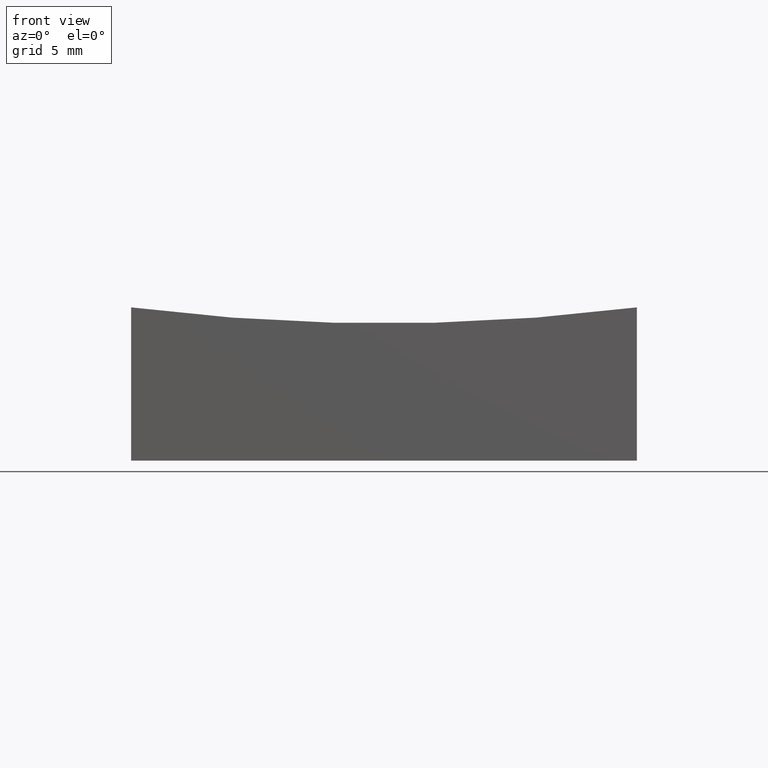
[diagram: clean part render]
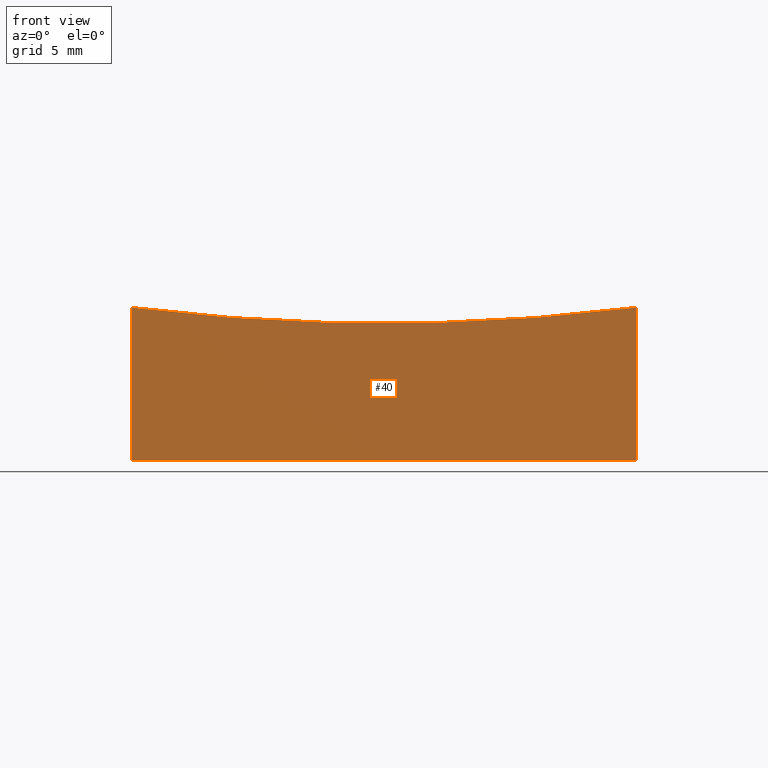
[diagram: same view with one face highlighted and labeled with its STEP entity id]
A machine part, front view. The second image highlights one B-rep face of the part: STEP entity #40.
In plain terms, the highlighted planar face has unit normal (0, 1, 0).
Its self-contained STEP definition (entity closure, byte-faithful):
#3 = VERTEX_POINT ( 'NONE', #179 ) ;
#7 = EDGE_CURVE ( 'NONE', #63, #31, #244, .T. ) ;
#8 = FACE_OUTER_BOUND ( 'NONE', #120, .T. ) ;
#10 = DIRECTION ( 'NONE',  ( 0.0000000000000000000, -0.0000000000000000000, 1.000000000000000000 ) ) ;
#11 = DIRECTION ( 'NONE',  ( 1.000000000000000000, 0.0000000000000000000, 0.0000000000000000000 ) ) ;
#25 = PLANE ( 'NONE',  #50 ) ;
#26 = VERTEX_POINT ( 'NONE', #237 ) ;
#31 = VERTEX_POINT ( 'NONE', #67 ) ;
#33 = CARTESIAN_POINT ( 'NONE',  ( -12.49999999999999645, -12.50000000000000000, 20.00000000000000000 ) ) ;
#40 = ADVANCED_FACE ( 'NONE', ( #8 ), #25, .F. ) ;
#50 = AXIS2_PLACEMENT_3D ( 'NONE', #155, #177, #10 ) ;
#51 = CARTESIAN_POINT ( 'NONE',  ( -12.49999999999999645, -12.50000000000000000, 0.0000000000000000000 ) ) ;
#54 = CARTESIAN_POINT ( 'NONE',  ( 12.50000000000000355, -12.50000000000000000, 20.00000000000000000 ) ) ;
#63 = VERTEX_POINT ( 'NONE', #51 ) ;
#67 = CARTESIAN_POINT ( 'NONE',  ( 12.50000000000000355, -12.50000000000000000, 0.0000000000000000000 ) ) ;
#77 = CIRCLE ( 'NONE', #213, 99.21567416492216296 ) ;
#79 = VECTOR ( 'NONE', #186, 1000.000000000000000 ) ;
#82 = ORIENTED_EDGE ( 'NONE', *, *, #199, .F. ) ;
#91 = VECTOR ( 'NONE', #127, 1000.000000000000000 ) ;
#94 = VECTOR ( 'NONE', #11, 1000.000000000000000 ) ;
#103 = DIRECTION ( 'NONE',  ( 0.0000000000000000000, 1.000000000000000000, 0.0000000000000000000 ) ) ;
#120 = EDGE_LOOP ( 'NONE', ( #82, #234, #214, #224 ) ) ;
#127 = DIRECTION ( 'NONE',  ( -0.0000000000000000000, -0.0000000000000000000, -1.000000000000000000 ) ) ;
#133 = CARTESIAN_POINT ( 'NONE',  ( -12.49999999999999645, -12.50000000000000000, 0.0000000000000000000 ) ) ;
#136 = EDGE_CURVE ( 'NONE', #3, #26, #77, .T. ) ;
#140 = LINE ( 'NONE', #33, #91 ) ;
#155 = CARTESIAN_POINT ( 'NONE',  ( -12.49999999999999645, -12.50000000000000000, 20.00000000000000000 ) ) ;
#177 = DIRECTION ( 'NONE',  ( 0.0000000000000000000, 1.000000000000000000, 0.0000000000000000000 ) ) ;
#179 = CARTESIAN_POINT ( 'NONE',  ( 12.50000000000000355, -12.50000000000000000, 7.574901574852354713 ) ) ;
#185 = DIRECTION ( 'NONE',  ( 0.0000000000000000000, 0.0000000000000000000, 1.000000000000000000 ) ) ;
#186 = DIRECTION ( 'NONE',  ( -0.0000000000000000000, -0.0000000000000000000, -1.000000000000000000 ) ) ;
#199 = EDGE_CURVE ( 'NONE', #3, #31, #227, .T. ) ;
#206 = CARTESIAN_POINT ( 'NONE',  ( 1.298125607096194621E-14, -12.50000000000000000, 106.0000000000000142 ) ) ;
#213 = AXIS2_PLACEMENT_3D ( 'NONE', #206, #103, #185 ) ;
#214 = ORIENTED_EDGE ( 'NONE', *, *, #251, .T. ) ;
#224 = ORIENTED_EDGE ( 'NONE', *, *, #7, .T. ) ;
#227 = LINE ( 'NONE', #54, #79 ) ;
#234 = ORIENTED_EDGE ( 'NONE', *, *, #136, .T. ) ;
#237 = CARTESIAN_POINT ( 'NONE',  ( -12.49999999999999645, -12.50000000000000000, 7.574901574852354713 ) ) ;
#244 = LINE ( 'NONE', #133, #94 ) ;
#251 = EDGE_CURVE ( 'NONE', #26, #63, #140, .T. ) ;